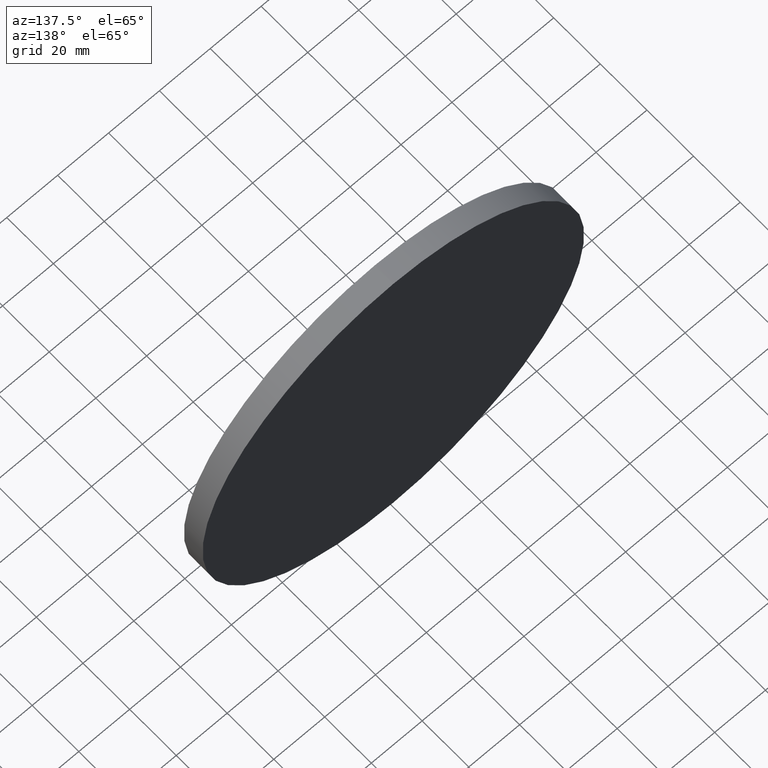
[diagram: clean part render]
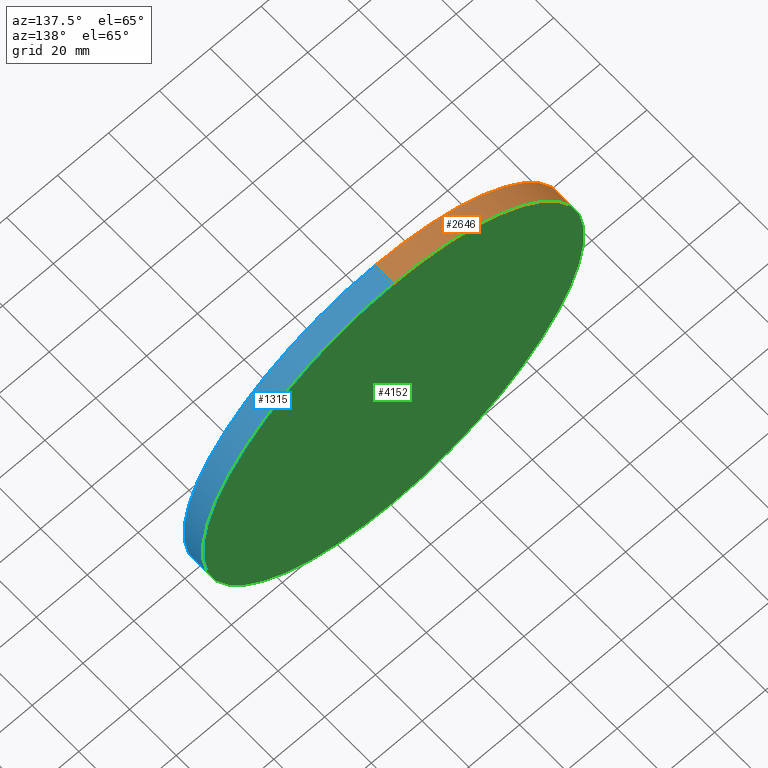
[diagram: same view with three faces highlighted in distinct colors, each labeled with its STEP entity id]
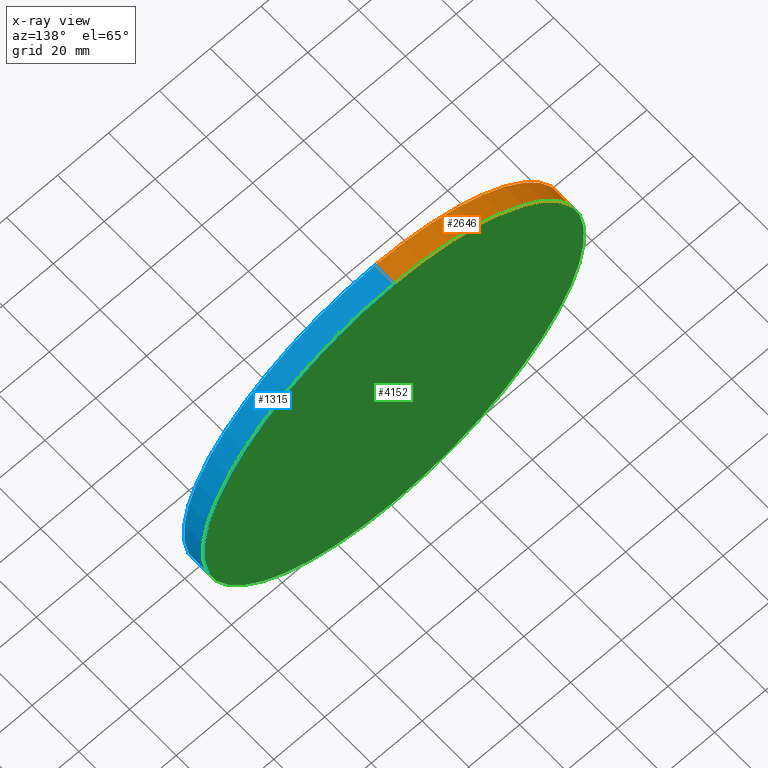
[diagram: x-ray of the same camera — body ghosted, the three highlighted faces saturated]
A machine part, auxiliary view with three faces highlighted in distinct colors.
The next image is the same camera in x-ray (body ghosted, the three faces saturated) — at least one of them is partly hidden behind the body in this view.
Their STEP definitions:

[orange] entity #2646 — the highlighted cylindrical surface (partial cylindrical patch) has radius 75 mm, axis along (-0, -1, -0).
#678 = FACE_OUTER_BOUND ( 'NONE', #6271, .T. ) ;
#854 = CYLINDRICAL_SURFACE ( 'NONE', #2221, 75.00000000000001421 ) ;
#1020 = ORIENTED_EDGE ( 'NONE', *, *, #1278, .F. ) ;
#1278 = EDGE_CURVE ( 'NONE', #13820, #3644, #10868, .T. ) ;
#2221 = AXIS2_PLACEMENT_3D ( 'NONE', #11391, #4665, #3579 ) ;
#2358 = LINE ( 'NONE', #3508, #4454 ) ;
#2646 = ADVANCED_FACE ( 'NONE', ( #678 ), #854, .T. ) ;
#3257 = EDGE_CURVE ( 'NONE', #12206, #3644, #11375, .T. ) ;
#3300 = VERTEX_POINT ( 'NONE', #13037 ) ;
#3508 = CARTESIAN_POINT ( 'NONE',  ( 0.000000000000000000, 4.000000000000000000, -75.00000000000001421 ) ) ;
#3579 = DIRECTION ( 'NONE',  ( 0.000000000000000000, 0.000000000000000000, -1.000000000000000000 ) ) ;
#3644 = VERTEX_POINT ( 'NONE', #3973 ) ;
#3973 = CARTESIAN_POINT ( 'NONE',  ( 9.184850993605150311E-15, -4.000000000000000000, 75.00000000000001421 ) ) ;
#4454 = VECTOR ( 'NONE', #6875, 1000.000000000000000 ) ;
#4514 = EDGE_CURVE ( 'NONE', #3300, #13820, #8873, .T. ) ;
#4665 = DIRECTION ( 'NONE',  ( -0.000000000000000000, -1.000000000000000000, -0.000000000000000000 ) ) ;
#4927 = AXIS2_PLACEMENT_3D ( 'NONE', #13215, #13270, #5424 ) ;
#5242 = DIRECTION ( 'NONE',  ( 0.000000000000000000, 0.000000000000000000, 1.000000000000000000 ) ) ;
#5424 = DIRECTION ( 'NONE',  ( 0.000000000000000000, 0.000000000000000000, 1.000000000000000000 ) ) ;
#6271 = EDGE_LOOP ( 'NONE', ( #1020, #9919, #13432, #10380 ) ) ;
#6281 = DIRECTION ( 'NONE',  ( 0.000000000000000000, 1.000000000000000000, 0.000000000000000000 ) ) ;
#6456 = DIRECTION ( 'NONE',  ( -0.000000000000000000, -1.000000000000000000, -0.000000000000000000 ) ) ;
#6852 = CARTESIAN_POINT ( 'NONE',  ( 9.184850993605150311E-15, 4.000000000000000000, 75.00000000000001421 ) ) ;
#6875 = DIRECTION ( 'NONE',  ( -0.000000000000000000, -1.000000000000000000, -0.000000000000000000 ) ) ;
#8873 = CIRCLE ( 'NONE', #4927, 75.00000000000001421 ) ;
#9084 = VECTOR ( 'NONE', #6456, 1000.000000000000000 ) ;
#9919 = ORIENTED_EDGE ( 'NONE', *, *, #4514, .F. ) ;
#10380 = ORIENTED_EDGE ( 'NONE', *, *, #3257, .T. ) ;
#10695 = CARTESIAN_POINT ( 'NONE',  ( 9.184850993605150311E-15, 4.000000000000000000, 75.00000000000001421 ) ) ;
#10868 = LINE ( 'NONE', #6852, #9084 ) ;
#10968 = AXIS2_PLACEMENT_3D ( 'NONE', #11978, #6281, #5242 ) ;
#11375 = CIRCLE ( 'NONE', #10968, 75.00000000000001421 ) ;
#11391 = CARTESIAN_POINT ( 'NONE',  ( 0.000000000000000000, 4.000000000000000000, 0.000000000000000000 ) ) ;
#11978 = CARTESIAN_POINT ( 'NONE',  ( 0.000000000000000000, -4.000000000000000000, 0.000000000000000000 ) ) ;
#12206 = VERTEX_POINT ( 'NONE', #14346 ) ;
#13037 = CARTESIAN_POINT ( 'NONE',  ( 0.000000000000000000, 4.000000000000000000, -75.00000000000001421 ) ) ;
#13215 = CARTESIAN_POINT ( 'NONE',  ( 0.000000000000000000, 4.000000000000000000, 0.000000000000000000 ) ) ;
#13270 = DIRECTION ( 'NONE',  ( 0.000000000000000000, 1.000000000000000000, 0.000000000000000000 ) ) ;
#13432 = ORIENTED_EDGE ( 'NONE', *, *, #14244, .T. ) ;
#13820 = VERTEX_POINT ( 'NONE', #10695 ) ;
#14244 = EDGE_CURVE ( 'NONE', #3300, #12206, #2358, .T. ) ;
#14346 = CARTESIAN_POINT ( 'NONE',  ( 0.000000000000000000, -4.000000000000000000, -75.00000000000001421 ) ) ;

[blue] entity #1315 — the highlighted cylindrical surface (partial cylindrical patch) has radius 75 mm, axis along (-0, -1, -0).
#431 = ORIENTED_EDGE ( 'NONE', *, *, #11875, .F. ) ;
#715 = CARTESIAN_POINT ( 'NONE',  ( 0.000000000000000000, 4.000000000000000000, 0.000000000000000000 ) ) ;
#838 = DIRECTION ( 'NONE',  ( -0.000000000000000000, -1.000000000000000000, -0.000000000000000000 ) ) ;
#1278 = EDGE_CURVE ( 'NONE', #13820, #3644, #10868, .T. ) ;
#1315 = ADVANCED_FACE ( 'NONE', ( #8729 ), #11390, .T. ) ;
#2358 = LINE ( 'NONE', #3508, #4454 ) ;
#3300 = VERTEX_POINT ( 'NONE', #13037 ) ;
#3508 = CARTESIAN_POINT ( 'NONE',  ( 0.000000000000000000, 4.000000000000000000, -75.00000000000001421 ) ) ;
#3644 = VERTEX_POINT ( 'NONE', #3973 ) ;
#3927 = AXIS2_PLACEMENT_3D ( 'NONE', #8242, #11805, #5027 ) ;
#3973 = CARTESIAN_POINT ( 'NONE',  ( 9.184850993605150311E-15, -4.000000000000000000, 75.00000000000001421 ) ) ;
#4024 = EDGE_LOOP ( 'NONE', ( #431, #14305, #12226, #10047 ) ) ;
#4253 = CARTESIAN_POINT ( 'NONE',  ( 0.000000000000000000, 4.000000000000000000, 0.000000000000000000 ) ) ;
#4419 = AXIS2_PLACEMENT_3D ( 'NONE', #4253, #838, #9790 ) ;
#4454 = VECTOR ( 'NONE', #6875, 1000.000000000000000 ) ;
#4941 = CIRCLE ( 'NONE', #13914, 75.00000000000001421 ) ;
#5027 = DIRECTION ( 'NONE',  ( 0.000000000000000000, 0.000000000000000000, 1.000000000000000000 ) ) ;
#6456 = DIRECTION ( 'NONE',  ( -0.000000000000000000, -1.000000000000000000, -0.000000000000000000 ) ) ;
#6852 = CARTESIAN_POINT ( 'NONE',  ( 9.184850993605150311E-15, 4.000000000000000000, 75.00000000000001421 ) ) ;
#6875 = DIRECTION ( 'NONE',  ( -0.000000000000000000, -1.000000000000000000, -0.000000000000000000 ) ) ;
#7377 = DIRECTION ( 'NONE',  ( 0.000000000000000000, 0.000000000000000000, 1.000000000000000000 ) ) ;
#8242 = CARTESIAN_POINT ( 'NONE',  ( 0.000000000000000000, -4.000000000000000000, 0.000000000000000000 ) ) ;
#8729 = FACE_OUTER_BOUND ( 'NONE', #4024, .T. ) ;
#8792 = CIRCLE ( 'NONE', #3927, 75.00000000000001421 ) ;
#9084 = VECTOR ( 'NONE', #6456, 1000.000000000000000 ) ;
#9636 = DIRECTION ( 'NONE',  ( 0.000000000000000000, 1.000000000000000000, 0.000000000000000000 ) ) ;
#9790 = DIRECTION ( 'NONE',  ( 0.000000000000000000, 0.000000000000000000, -1.000000000000000000 ) ) ;
#10047 = ORIENTED_EDGE ( 'NONE', *, *, #14244, .F. ) ;
#10695 = CARTESIAN_POINT ( 'NONE',  ( 9.184850993605150311E-15, 4.000000000000000000, 75.00000000000001421 ) ) ;
#10868 = LINE ( 'NONE', #6852, #9084 ) ;
#11127 = EDGE_CURVE ( 'NONE', #3644, #12206, #8792, .T. ) ;
#11390 = CYLINDRICAL_SURFACE ( 'NONE', #4419, 75.00000000000001421 ) ;
#11805 = DIRECTION ( 'NONE',  ( 0.000000000000000000, 1.000000000000000000, 0.000000000000000000 ) ) ;
#11875 = EDGE_CURVE ( 'NONE', #13820, #3300, #4941, .T. ) ;
#12206 = VERTEX_POINT ( 'NONE', #14346 ) ;
#12226 = ORIENTED_EDGE ( 'NONE', *, *, #11127, .T. ) ;
#13037 = CARTESIAN_POINT ( 'NONE',  ( 0.000000000000000000, 4.000000000000000000, -75.00000000000001421 ) ) ;
#13820 = VERTEX_POINT ( 'NONE', #10695 ) ;
#13914 = AXIS2_PLACEMENT_3D ( 'NONE', #715, #9636, #7377 ) ;
#14244 = EDGE_CURVE ( 'NONE', #3300, #12206, #2358, .T. ) ;
#14305 = ORIENTED_EDGE ( 'NONE', *, *, #1278, .T. ) ;
#14346 = CARTESIAN_POINT ( 'NONE',  ( 0.000000000000000000, -4.000000000000000000, -75.00000000000001421 ) ) ;

[green] entity #4152 — the highlighted planar face has unit normal (0, 1, 0).
#715 = CARTESIAN_POINT ( 'NONE',  ( 0.000000000000000000, 4.000000000000000000, 0.000000000000000000 ) ) ;
#1007 = CARTESIAN_POINT ( 'NONE',  ( 0.000000000000000000, 4.000000000000000000, 0.000000000000000000 ) ) ;
#2136 = DIRECTION ( 'NONE',  ( 0.000000000000000000, -0.000000000000000000, 1.000000000000000000 ) ) ;
#3111 = FACE_OUTER_BOUND ( 'NONE', #3425, .T. ) ;
#3300 = VERTEX_POINT ( 'NONE', #13037 ) ;
#3425 = EDGE_LOOP ( 'NONE', ( #8119, #3939 ) ) ;
#3939 = ORIENTED_EDGE ( 'NONE', *, *, #11875, .T. ) ;
#4152 = ADVANCED_FACE ( 'NONE', ( #3111 ), #11296, .T. ) ;
#4514 = EDGE_CURVE ( 'NONE', #3300, #13820, #8873, .T. ) ;
#4927 = AXIS2_PLACEMENT_3D ( 'NONE', #13215, #13270, #5424 ) ;
#4941 = CIRCLE ( 'NONE', #13914, 75.00000000000001421 ) ;
#5424 = DIRECTION ( 'NONE',  ( 0.000000000000000000, 0.000000000000000000, 1.000000000000000000 ) ) ;
#7377 = DIRECTION ( 'NONE',  ( 0.000000000000000000, 0.000000000000000000, 1.000000000000000000 ) ) ;
#8119 = ORIENTED_EDGE ( 'NONE', *, *, #4514, .T. ) ;
#8821 = DIRECTION ( 'NONE',  ( 0.000000000000000000, 1.000000000000000000, 0.000000000000000000 ) ) ;
#8873 = CIRCLE ( 'NONE', #4927, 75.00000000000001421 ) ;
#9636 = DIRECTION ( 'NONE',  ( 0.000000000000000000, 1.000000000000000000, 0.000000000000000000 ) ) ;
#10695 = CARTESIAN_POINT ( 'NONE',  ( 9.184850993605150311E-15, 4.000000000000000000, 75.00000000000001421 ) ) ;
#10755 = AXIS2_PLACEMENT_3D ( 'NONE', #1007, #8821, #2136 ) ;
#11296 = PLANE ( 'NONE',  #10755 ) ;
#11875 = EDGE_CURVE ( 'NONE', #13820, #3300, #4941, .T. ) ;
#13037 = CARTESIAN_POINT ( 'NONE',  ( 0.000000000000000000, 4.000000000000000000, -75.00000000000001421 ) ) ;
#13215 = CARTESIAN_POINT ( 'NONE',  ( 0.000000000000000000, 4.000000000000000000, 0.000000000000000000 ) ) ;
#13270 = DIRECTION ( 'NONE',  ( 0.000000000000000000, 1.000000000000000000, 0.000000000000000000 ) ) ;
#13820 = VERTEX_POINT ( 'NONE', #10695 ) ;
#13914 = AXIS2_PLACEMENT_3D ( 'NONE', #715, #9636, #7377 ) ;